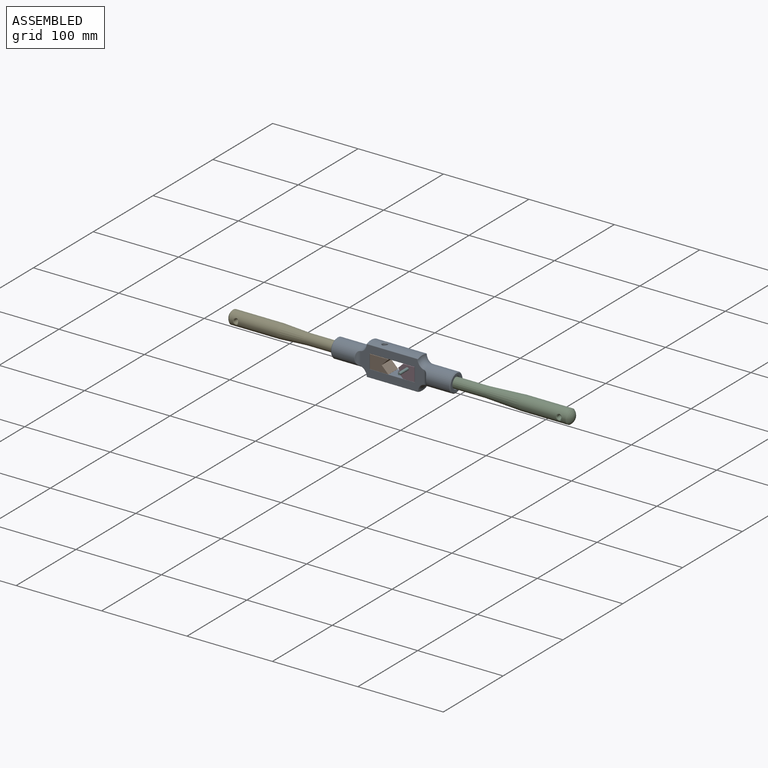
[diagram: assembled view]
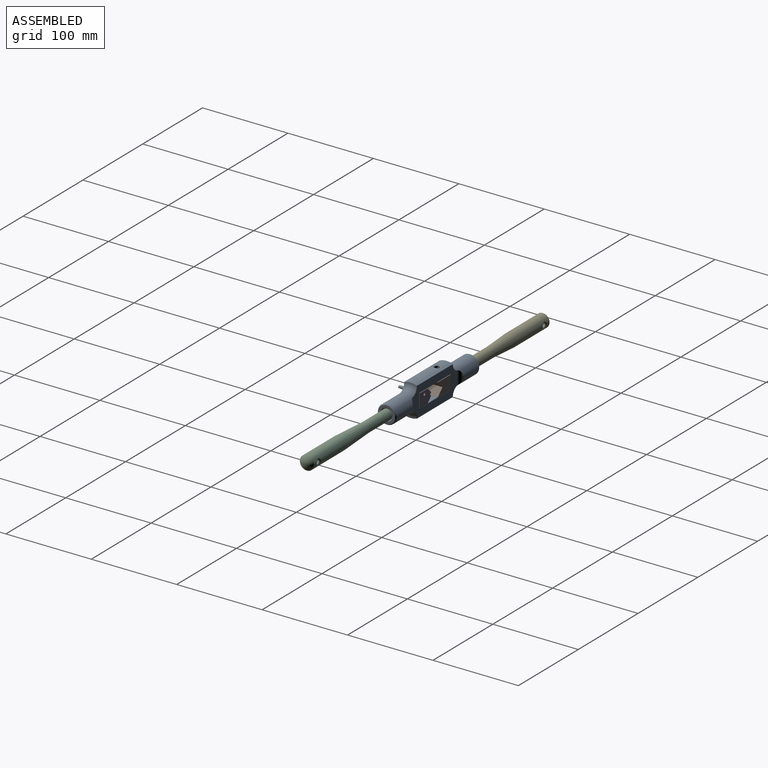
[diagram: assembled view, second angle]
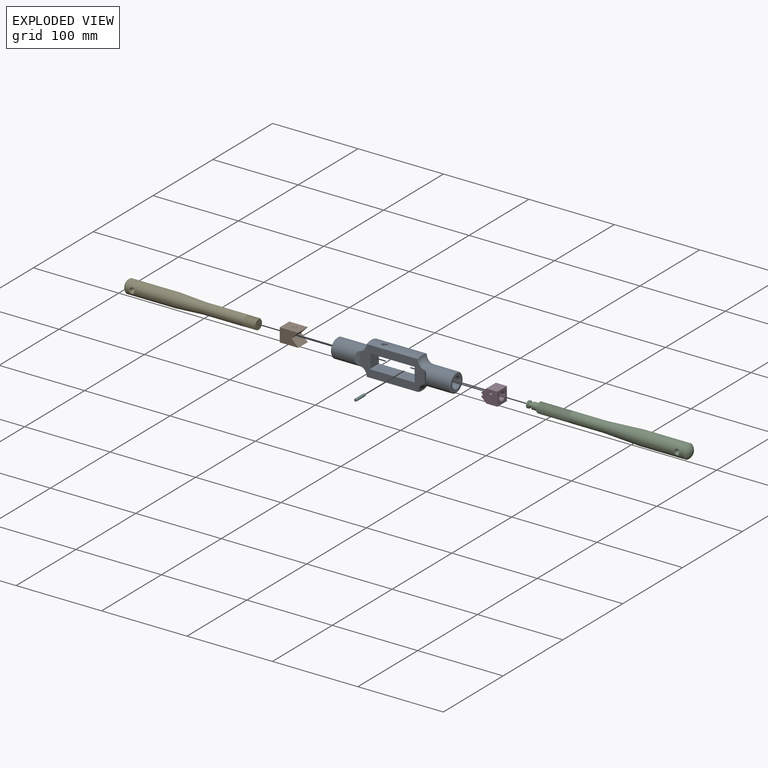
[diagram: exploded view]
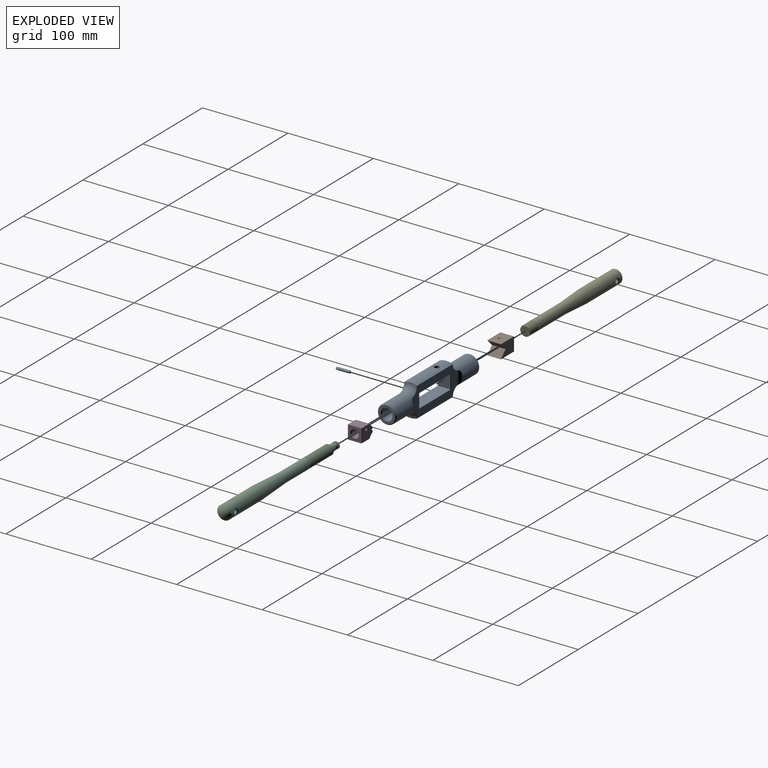
[diagram: exploded view, second angle]
ASSEMBLY  parts=6 mates=5
PART A: 74 faces, bbox 140x28.3x41.1 mm
  f0: cylinder r=19mm len=59.03mm, axis (-1,0,0), area 841.6mm2, adj f27,f39,f55,f58,f67
  f1: cylinder r=19mm len=59.03mm, axis (-1,0,0), area 887.8mm2, adj f28,f40,f61,f64
  f2: torus R=19mm, axis (-1,0,0), area 187.5mm2, adj f4,f30,f32,f42,f44,f64
  f3: torus R=19mm, axis (-1,0,0), area 187.5mm2, adj f4,f29,f31,f41,f43,f58
  f4: cylinder r=11mm len=31mm, axis (-1,0,0), area 2142.6mm2, adj f2,f3,f11,f33,f45
  f5: cylinder r=11mm len=31mm, axis (-1,0,0), area 2142.6mm2, adj f6,f7,f10,f22,f34
  f6: torus R=19mm, axis (-1,0,0), area 187.5mm2, adj f5,f24,f26,f36,f38,f61
  f7: torus R=19mm, axis (-1,0,0), area 187.5mm2, adj f5,f23,f25,f35,f37,f55
  f8: plane 20x20mm, normal (-1,0,0), area 160.2mm2, adj f11,f73
  f9: plane 20x20mm, normal (1,0,0), area 160.2mm2, adj f10,f71
  f10: cone r=11mm half-angle=45deg, axis (-1,0,0), area 93.3mm2, adj f5,f9
  f11: cone r=10mm half-angle=45deg, axis (1,0,0), area 93.3mm2, adj f4,f8
  f12: cylinder r=5mm len=15.57mm, axis (0,0,1), area 71.6mm2, adj f14,f43,f44,f45
  f13: cylinder r=5mm len=15.57mm, axis (0,0,1), area 71.6mm2, adj f14,f34,f35,f36
  f14: plane 74.01x34.15mm, normal (0,-1,0), area 1421.4mm2, adj f12,f13,f37,f38,f39,f40,f41,f42
  f15: cylinder r=5mm len=15.57mm, axis (0,0,1), area 71.6mm2, adj f16,f31,f32,f33
  f16: plane 74.01x34.15mm, normal (0,1,0), area 1421.4mm2, adj f15,f17,f25,f26,f27,f28,f29,f30
  f17: cylinder r=5mm len=15.57mm, axis (0,0,1), area 71.6mm2, adj f16,f22,f23,f24
  f18: plane 16x14.26mm, normal (-1,0,0), area 115.1mm2, adj f19,f21,f48,f52,f68
  f19: plane 52x14.26mm, normal (0,0,1), area 741.7mm2, adj f18,f20,f46,f50
  f20: plane 16x14.26mm, normal (1,0,0), area 228.2mm2, adj f19,f21,f47,f51
  f21: plane 52x14.26mm, normal (0,0,-1), area 713.5mm2, adj f18,f20,f49,f53,f66
  f22: bspline ~16.15x4.99mm, area 10.3mm2, adj f5,f17,f23,f24
  f23: bspline ~3.19x0.95mm, area 0.4mm2, adj f7,f17,f22,f25
  f24: bspline ~3.19x0.95mm, area 0.4mm2, adj f6,f17,f22,f26
  f25: bspline ~9.84x9.02mm, area 7.4mm2, adj f7,f16,f23,f54
  f26: bspline ~9.84x9.02mm, area 7.4mm2, adj f6,f16,f24,f62
  f27: cylinder r=0.5mm len=59.03mm, axis (-1,0,0), area 34.7mm2, adj f0,f16,f54,f57
  f28: cylinder r=0.5mm len=59.03mm, axis (-1,0,0), area 34.7mm2, adj f1,f16,f62,f65
  f29: bspline ~9.84x9.02mm, area 7.4mm2, adj f3,f16,f31,f57
  f30: bspline ~9.84x9.02mm, area 7.4mm2, adj f2,f16,f32,f65
  f31: bspline ~3.19x0.95mm, area 0.4mm2, adj f3,f15,f29,f33
  f32: bspline ~3.19x0.95mm, area 0.4mm2, adj f2,f15,f30,f33
  f33: bspline ~16.15x4.99mm, area 10.3mm2, adj f4,f15,f31,f32
  f34: bspline ~16.15x4.99mm, area 10.3mm2, adj f5,f13,f35,f36
  f35: bspline ~3.19x0.95mm, area 0.4mm2, adj f7,f13,f34,f37
  f36: bspline ~3.19x0.95mm, area 0.4mm2, adj f6,f13,f34,f38
  f37: bspline ~9.84x9.02mm, area 7.4mm2, adj f7,f14,f35,f56
  f38: bspline ~9.84x9.02mm, area 7.4mm2, adj f6,f14,f36,f60
  f39: cylinder r=0.5mm len=59.03mm, axis (-1,0,0), area 34.7mm2, adj f0,f14,f56,f59
  f40: cylinder r=0.5mm len=59.03mm, axis (-1,0,0), area 34.7mm2, adj f1,f14,f60,f63
  f41: bspline ~9.84x9.02mm, area 7.4mm2, adj f3,f14,f43,f59
  f42: bspline ~9.84x9.02mm, area 7.4mm2, adj f2,f14,f44,f63
  f43: bspline ~3.19x0.95mm, area 0.4mm2, adj f3,f12,f41,f45
  f44: bspline ~3.19x0.95mm, area 0.4mm2, adj f2,f12,f42,f45
  f45: bspline ~16.15x4.99mm, area 10.3mm2, adj f4,f12,f43,f44
  f46: cylinder r=0.5mm len=53mm, axis (-1,0,0), area 41.2mm2, adj f16,f19,f47,f48
  f47: cylinder r=0.5mm len=17mm, axis (0,0,1), area 13mm2, adj f16,f20,f46,f49
  f48: cylinder r=0.5mm len=17mm, axis (0,0,-1), area 13mm2, adj f16,f18,f46,f49
  f49: cylinder r=0.5mm len=53mm, axis (1,0,0), area 41.2mm2, adj f16,f21,f47,f48
  f50: cylinder r=0.5mm len=53mm, axis (1,0,0), area 41.2mm2, adj f14,f19,f51,f52
  f51: cylinder r=0.5mm len=17mm, axis (0,0,-1), area 13mm2, adj f14,f20,f50,f53
  f52: cylinder r=0.5mm len=17mm, axis (0,0,1), area 13mm2, adj f14,f18,f50,f53
  f53: cylinder r=0.5mm len=53mm, axis (-1,0,0), area 41.2mm2, adj f14,f21,f51,f52
  f54: sphere r=0.5mm, area 0.2mm2, adj f25,f27,f55
  f55: torus R=18.5mm, axis (1,0,0), area 11.3mm2, adj f0,f7,f54,f56
  f56: sphere r=0.5mm, area 0.2mm2, adj f37,f39,f55
  f57: sphere r=0.5mm, area 0.2mm2, adj f27,f29,f58
  f58: torus R=18.5mm, axis (1,0,0), area 11.3mm2, adj f0,f3,f57,f59
  f59: sphere r=0.5mm, area 0.2mm2, adj f39,f41,f58
  f60: sphere r=0.5mm, area 0.2mm2, adj f38,f40,f61
  f61: torus R=18.5mm, axis (1,0,0), area 11.3mm2, adj f1,f6,f60,f62
  f62: sphere r=0.5mm, area 0.2mm2, adj f26,f28,f61
  f63: sphere r=0.5mm, area 0.2mm2, adj f40,f42,f64
  f64: torus R=18.5mm, axis (1,0,0), area 11.3mm2, adj f1,f2,f63,f65
  f65: sphere r=0.5mm, area 0.2mm2, adj f28,f30,f64
  f66: cylinder r=3mm len=10.25mm, axis (0,0,-1), area 193.2mm2, adj f21,f67
  f67: bspline ~7.81x7.5mm, area 23.9mm2, adj f0,f66
  f68: cylinder r=6mm len=43mm, axis (1,0,0), area 1621.1mm2, adj f18,f71
  f69: cylinder r=6mm len=28mm, axis (-1,0,0), area 1055.6mm2, adj f72,f73
  f70: plane 10x10mm, normal (-1,0,0), area 78.5mm2, adj f72
  f71: cone r=6mm half-angle=45deg, axis (1,0,0), area 57.8mm2, adj f9,f68
  f72: cone r=5mm half-angle=45deg, axis (-1,0,0), area 48.9mm2, adj f69,f70
  f73: cone r=6mm half-angle=45deg, axis (-1,0,0), area 57.8mm2, adj f8,f69
PART B: 34 faces, bbox 21.9x16x16 mm
  f0: plane 21.66x15.8mm, normal (0,-1,0), area 321mm2, adj f8,f22,f27,f30,f33
  f1: plane 15.8x15.8mm, normal (1,0,0), area 249.6mm2, adj f19,f28,f29,f33
  f2: plane 21.66x15.8mm, normal (0,1,0), area 342.2mm2, adj f10,f18,f19,f20
  f3: plane 15.8x7.76mm, normal (-0.71,-0.71,0), area 173.4mm2, adj f9,f10,f11,f12
  f4: plane 15.8x7.76mm, normal (-0.71,0.71,0), area 173.4mm2, adj f12,f17,f21,f22
  f5: plane 21.66x15.8mm, normal (0,0,1), area 279.8mm2, adj f9,f13,f17,f18,f27,f28
  f6: plane 21.66x15.8mm, normal (0,0,-1), area 279.8mm2, adj f11,f16,f20,f21,f29,f30
  f7: plane 4x4mm, normal (0,-1,0), area 12.6mm2, adj f8
  f8: cone r=2mm half-angle=31deg, axis (0,-1,0), area 16.9mm2, adj f0,f7
  f9: cylinder r=0.1mm len=7.83mm, axis (-0.71,0.71,0), area 1.7mm2, adj f3,f5,f13,f14
  f10: cylinder r=0.1mm len=15.8mm, axis (0,0,-1), area 3.7mm2, adj f2,f3,f14,f15
  f11: cylinder r=0.1mm len=7.83mm, axis (0.71,-0.71,0), area 1.7mm2, adj f3,f6,f15,f16
  f12: cylinder r=0.1mm len=15.8mm, axis (0,0,1), area 2.5mm2, adj f3,f4,f13,f16
  f13: torus R=0.2mm, axis (0,0,1), area 0mm2, adj f5,f9,f12,f17
  f14: sphere r=0.1mm, area 0mm2, adj f9,f10,f18
  f15: sphere r=0.1mm, area 0mm2, adj f10,f11,f20
  f16: torus R=0.2mm, axis (0,0,1), area 0mm2, adj f6,f11,f12,f21
  f17: cylinder r=0.1mm len=7.83mm, axis (0.71,0.71,0), area 1.7mm2, adj f4,f5,f13,f23
  f18: cylinder r=0.1mm len=21.66mm, axis (1,0,0), area 3.4mm2, adj f2,f5,f14,f24
  f19: cylinder r=0.1mm len=15.8mm, axis (0,0,-1), area 2.5mm2, adj f1,f2,f24,f25
  f20: cylinder r=0.1mm len=21.66mm, axis (-1,0,0), area 3.4mm2, adj f2,f6,f15,f25
  f21: cylinder r=0.1mm len=7.83mm, axis (-0.71,-0.71,0), area 1.7mm2, adj f4,f6,f16,f26
  f22: cylinder r=0.1mm len=15.8mm, axis (0,0,-1), area 3.7mm2, adj f0,f4,f23,f26
  f23: sphere r=0.1mm, area 0mm2, adj f17,f22,f27
  f24: sphere r=0.1mm, area 0mm2, adj f18,f19,f28
  f25: sphere r=0.1mm, area 0mm2, adj f19,f20,f29
  f26: sphere r=0.1mm, area 0mm2, adj f21,f22,f30
  f27: cylinder r=0.1mm len=21.66mm, axis (-1,0,0), area 3.4mm2, adj f0,f5,f23,f31
  f28: cylinder r=0.1mm len=15.8mm, axis (0,-1,0), area 2.5mm2, adj f1,f5,f24,f31
  f29: cylinder r=0.1mm len=15.8mm, axis (0,1,0), area 2.5mm2, adj f1,f6,f25,f32
  f30: cylinder r=0.1mm len=21.66mm, axis (1,0,0), area 3.4mm2, adj f0,f6,f26,f32
  f31: sphere r=0.1mm, area 0mm2, adj f27,f28,f33
  f32: sphere r=0.1mm, area 0mm2, adj f29,f30,f33
  f33: cylinder r=0.1mm len=15.8mm, axis (0,0,-1), area 2.5mm2, adj f0,f1,f31,f32
PART C: 40 faces, bbox 191.7x16.5x16.5 mm
  f0: cylinder r=8.23mm len=54.4mm, axis (-1,0,0), area 2740.6mm2, adj f3,f4,f38,f39
  f1: cylinder r=4mm len=8mm, axis (-1,0,0), area 50.3mm2, adj f2,f32
  f2: plane 8x8mm, normal (-1,0,0), area 50.3mm2, adj f1
  f3: sphere r=10mm, area 271.8mm2, adj f0
  f4: cone r=6mm half-angle=3deg, axis (1,0,0), area 1925.4mm2, adj f0,f5
  f5: cone r=6.05mm half-angle=0.1deg, axis (-1,0,0), area 1400.2mm2, adj f4,f6
  f6: plane 12.09x12.09mm, normal (-1,0,0), area 1.7mm2, adj f5,f7
  f7: cylinder r=6mm len=12mm, axis (-1,0,0), area 64.8mm2, adj f6,f8,f33,f34,f36
  f8: cylinder r=6mm len=12mm, axis (-1,0,0), area 22.5mm2, adj f7,f9,f34,f36
  f9: cylinder r=6mm len=12mm, axis (-1,0,0), area 22.5mm2, adj f8,f10,f34,f36
  f10: cylinder r=6mm len=12mm, axis (-1,0,0), area 22.4mm2, adj f9,f11,f34,f36
  f11: cylinder r=6mm len=12mm, axis (-1,0,0), area 22.5mm2, adj f10,f12,f34,f36
  f12: cylinder r=6mm len=12mm, axis (-1,0,0), area 22.4mm2, adj f11,f13,f34,f36
  f13: cylinder r=6mm len=12mm, axis (-1,0,0), area 22.4mm2, adj f12,f14,f34,f36
  f14: cylinder r=6mm len=12mm, axis (-1,0,0), area 22.4mm2, adj f13,f15,f34,f36
  f15: cylinder r=6mm len=12mm, axis (-1,0,0), area 22.5mm2, adj f14,f16,f34,f36
  f16: cylinder r=6mm len=12mm, axis (-1,0,0), area 22.4mm2, adj f15,f17,f34,f36
  f17: cylinder r=6mm len=12mm, axis (-1,0,0), area 22.4mm2, adj f16,f18,f34,f36
  f18: cylinder r=6mm len=12mm, axis (-1,0,0), area 22.4mm2, adj f17,f19,f34,f36
  f19: cylinder r=6mm len=12mm, axis (-1,0,0), area 22.4mm2, adj f18,f20,f34,f36
  f20: cylinder r=6mm len=12mm, axis (-1,0,0), area 22.5mm2, adj f19,f21,f34,f36
  f21: cylinder r=6mm len=12mm, axis (-1,0,0), area 22.4mm2, adj f20,f22,f34,f36
  f22: cylinder r=6mm len=12mm, axis (-1,0,0), area 22.4mm2, adj f21,f23,f34,f36
  f23: cylinder r=6mm len=12mm, axis (-1,0,0), area 22.5mm2, adj f22,f24,f34,f36
  f24: cylinder r=6mm len=12mm, axis (-1,0,0), area 22.5mm2, adj f23,f25,f34,f36
  f25: cylinder r=6mm len=12mm, axis (-1,0,0), area 22.4mm2, adj f24,f26,f34,f36
  f26: cylinder r=6mm len=12mm, axis (-1,0,0), area 22.4mm2, adj f25,f27,f34,f36
  f27: cylinder r=6mm len=12mm, axis (-1,0,0), area 22.5mm2, adj f26,f28,f34,f36
  f28: cylinder r=6mm len=12mm, axis (-1,0,0), area 22.5mm2, adj f27,f29,f34,f36
  f29: cylinder r=6mm len=11.83mm, axis (-1,0,0), area 6.5mm2, adj f28,f30,f34,f36
  f30: cone r=4mm half-angle=60deg, axis (1,0,0), area 59.3mm2, adj f29,f31,f34,f35,f36
  f31: cylinder r=4mm len=8mm, axis (-1,0,0), area 150.8mm2, adj f30,f32
  f32: torus R=4mm, axis (-1,0,0), area 107.6mm2, adj f1,f31
  f33: plane 1.16x0.91mm, normal (0,0,1), area 0.6mm2, adj f7,f34,f35,f36
  f34: bspline ~39.91x13.93mm, area 757.1mm2, adj f7,f8,f9,f10,f11,f12,f13,f14
  f35: bspline ~39.55x11.81mm, area 150.5mm2, adj f30,f33,f34,f36
  f36: bspline ~39.91x13.93mm, area 770mm2, adj f7,f8,f9,f10,f11,f12,f13,f14
  f37: cylinder r=2.5mm len=13.54mm, axis (0,1,0), area 212.7mm2, adj f38,f39
  f38: bspline ~7.08x6.46mm, area 21.4mm2, adj f0,f37
  f39: bspline ~7.08x6.46mm, area 21.4mm2, adj f0,f37
PART D: 50 faces, bbox 19x16x16 mm
  f0: plane 15.8x12.86mm, normal (0,1,0), area 203.2mm2, adj f33,f38,f41,f44
  f1: plane 15.8x5.9mm, normal (-0.71,0.71,0), area 131.8mm2, adj f30,f39,f40,f44
  f2: plane 15.8x1.86mm, normal (-0.71,-0.71,0), area 41.5mm2, adj f20,f29,f30,f31
  f3: plane 15.8x1.86mm, normal (-0.71,0.71,0), area 41.5mm2, adj f11,f19,f20,f21
  f4: plane 15.8x5.9mm, normal (-0.71,-0.71,0), area 131.8mm2, adj f10,f11,f12,f13
  f5: plane 15.8x12.86mm, normal (0,-1,0), area 203.2mm2, adj f13,f18,f22,f23
  f6: plane 15.8x15.8mm, normal (1,0,0), area 171.1mm2, adj f23,f28,f32,f33,f49
  f7: cylinder r=1.55mm len=15.8mm, axis (0,0,-1), area 129.6mm2, adj f45,f46,f47
  f8: plane 18.76x15.8mm, normal (0,0,1), area 249mm2, adj f10,f18,f19,f25,f28,f29,f38,f39
  f9: plane 18.76x15.8mm, normal (0,0,-1), area 249mm2, adj f12,f21,f22,f26,f31,f32,f40,f41
  f10: cylinder r=0.1mm len=5.97mm, axis (-0.71,0.71,0), area 1.3mm2, adj f4,f8,f14,f15
  f11: cylinder r=0.1mm len=15.8mm, axis (0,0,-1), area 2.5mm2, adj f3,f4,f15,f16
  f12: cylinder r=0.1mm len=5.97mm, axis (0.71,-0.71,0), area 1.3mm2, adj f4,f9,f16,f17
  f13: cylinder r=0.1mm len=15.8mm, axis (0,0,1), area 1.2mm2, adj f4,f5,f14,f17
  f14: sphere r=0.1mm, area 0mm2, adj f10,f13,f18
  f15: sphere r=0.1mm, area 0mm2, adj f10,f11,f19
  f16: sphere r=0.1mm, area 0mm2, adj f11,f12,f21
  f17: sphere r=0.1mm, area 0mm2, adj f12,f13,f22
  f18: cylinder r=0.1mm len=12.86mm, axis (-1,0,0), area 2mm2, adj f5,f8,f14,f24
  f19: cylinder r=0.1mm len=1.93mm, axis (0.71,0.71,0), area 0.4mm2, adj f3,f8,f15,f25
  f20: cylinder r=0.1mm len=15.8mm, axis (0,0,1), area 2.5mm2, adj f2,f3,f25,f26
  f21: cylinder r=0.1mm len=1.93mm, axis (-0.71,-0.71,0), area 0.4mm2, adj f3,f9,f16,f26
  f22: cylinder r=0.1mm len=12.86mm, axis (1,0,0), area 2mm2, adj f5,f9,f17,f27
  f23: cylinder r=0.1mm len=15.8mm, axis (0,0,1), area 2.5mm2, adj f5,f6,f24,f27
  f24: sphere r=0.1mm, area 0mm2, adj f18,f23,f28
  f25: torus R=0.2mm, axis (0,0,1), area 0mm2, adj f8,f19,f20,f29
  f26: torus R=0.2mm, axis (0,0,1), area 0mm2, adj f9,f20,f21,f31
  f27: sphere r=0.1mm, area 0mm2, adj f22,f23,f32
  f28: cylinder r=0.1mm len=15.8mm, axis (0,-1,0), area 2.5mm2, adj f6,f8,f24,f34
  f29: cylinder r=0.1mm len=1.93mm, axis (-0.71,0.71,0), area 0.4mm2, adj f2,f8,f25,f35
  f30: cylinder r=0.1mm len=15.8mm, axis (0,0,1), area 2.5mm2, adj f1,f2,f35,f36
  f31: cylinder r=0.1mm len=1.93mm, axis (0.71,-0.71,0), area 0.4mm2, adj f2,f9,f26,f36
  f32: cylinder r=0.1mm len=15.8mm, axis (0,1,0), area 2.5mm2, adj f6,f9,f27,f37
  f33: cylinder r=0.1mm len=15.8mm, axis (0,0,1), area 2.5mm2, adj f0,f6,f34,f37
  f34: sphere r=0.1mm, area 0mm2, adj f28,f33,f38
  f35: sphere r=0.1mm, area 0mm2, adj f29,f30,f39
  f36: sphere r=0.1mm, area 0mm2, adj f30,f31,f40
  f37: sphere r=0.1mm, area 0mm2, adj f32,f33,f41
  f38: cylinder r=0.1mm len=12.86mm, axis (1,0,0), area 2mm2, adj f0,f8,f34,f42
  f39: cylinder r=0.1mm len=5.97mm, axis (0.71,0.71,0), area 1.3mm2, adj f1,f8,f35,f42
  f40: cylinder r=0.1mm len=5.97mm, axis (-0.71,-0.71,0), area 1.3mm2, adj f1,f9,f36,f43
  f41: cylinder r=0.1mm len=12.86mm, axis (-1,0,0), area 2mm2, adj f0,f9,f37,f43
  f42: sphere r=0.1mm, area 0mm2, adj f38,f39,f44
  f43: sphere r=0.1mm, area 0mm2, adj f40,f41,f44
  f44: cylinder r=0.1mm len=15.8mm, axis (0,0,-1), area 1.2mm2, adj f0,f1,f42,f43
  f45: torus R=1.65mm, axis (0,0,1), area 1.6mm2, adj f7,f9
  f46: torus R=1.65mm, axis (0,0,1), area 1.6mm2, adj f7,f8
  f47: cylinder r=4mm len=11mm, axis (1,0,0), area 256.8mm2, adj f7,f48,f49
  f48: plane 8x8mm, normal (1,0,0), area 50.3mm2, adj f47
  f49: cone r=4mm half-angle=45deg, axis (1,0,0), area 40mm2, adj f6,f47
PART E: 16 faces, bbox 156.2x17.5x17.5 mm
  f0: plane 12.2x12.2mm, normal (1,0,0), area 3.4mm2, adj f1,f5,f11,f13
  f1: cylinder r=6.1mm len=49.14mm, axis (-1,0,0), area 1882.9mm2, adj f0,f6,f11,f13
  f2: cylinder r=7.9mm len=55.77mm, axis (-1,0,0), area 2696.3mm2, adj f6,f8,f9,f10
  f3: sphere r=10mm, area 225.2mm2, adj f10
  f4: plane 12.18x11.51mm, normal (1,0,0), area 101.9mm2, adj f5,f12,f13,f14,f15
  f5: cylinder r=6mm len=14mm, axis (-1,0,0), area 183.9mm2, adj f0,f4,f11,f12,f13,f15
  f6: cone r=7.9mm half-angle=3.2deg, axis (-1,0,0), area 1404mm2, adj f1,f2
  f7: cylinder r=2.5mm len=12.84mm, axis (0,-1,0), area 201.7mm2, adj f8,f9
  f8: bspline ~7.08x6.44mm, area 21.1mm2, adj f2,f7
  f9: bspline ~7.08x6.44mm, area 21.1mm2, adj f2,f7
  f10: torus R=6.9mm, axis (1,0,0), area 34.2mm2, adj f2,f3
  f11: plane 1.22x1mm, normal (0,0,-1), area 0.6mm2, adj f0,f1,f5,f13,f14,f15
  f12: plane 0.24x0.14mm, normal (0,0,1), area 0mm2, adj f4,f5,f13
  f13: bspline ~14.58x14.25mm, area 270mm2, adj f0,f1,f4,f5,f11,f12,f14
  f14: bspline ~13.89x11.92mm, area 56mm2, adj f4,f11,f13,f15
  f15: bspline ~14.29x14.25mm, area 256.9mm2, adj f4,f5,f11,f14
PART F: 5 faces, bbox 16x3.2x3.2 mm
  f0: cylinder r=1.58mm len=12mm, axis (-1,0,0), area 119.5mm2, adj f3,f4
  f1: plane 2.82x2.82mm, normal (1,0,0), area 6.2mm2, adj f3
  f2: plane 2.82x2.82mm, normal (-1,0,0), area 6.2mm2, adj f4
  f3: cone r=1.41mm half-angle=5deg, axis (-1,0,0), area 18.9mm2, adj f0,f1
  f4: cone r=1.58mm half-angle=5deg, axis (1,0,0), area 18.9mm2, adj f0,f2
PLACE A t=(13.05,-25.13,11.59)mm fixed
PLACE B rot(axis=(0,-0.71,0.71),180deg) t=(-82.95,-17.13,19.59)mm
PLACE C t=(-40.95,-25.13,11.59)mm
PLACE D rot(axis=(-1,0,0),90deg) t=(-30.95,-33.13,19.59)mm
PLACE E t=(-251.95,-25.13,11.59)mm
PLACE F rot(axis=(-0.58,-0.58,0.58),120deg) t=(-38.95,-47.03,15.59)mm
MATE fastened B.f1 <-> A.f0  axis (-1,0,0) through (-82.95,-25.13,11.59)mm
MATE fastened D.f47 <-> A.f68  axis (1,0,0) through (-30.95,-25.13,11.59)mm
MATE fastened E.f1 <-> A.f68  axis (1,0,0) through (-96.95,-25.13,11.59)mm
MATE fastened C.f0 <-> A.f68  axis (-1,0,0) through (12.05,-25.13,11.59)mm
MATE fastened F.f0 <-> D.f7  axis (0,-1,0) through (-38.95,-33.03,15.59)mm
